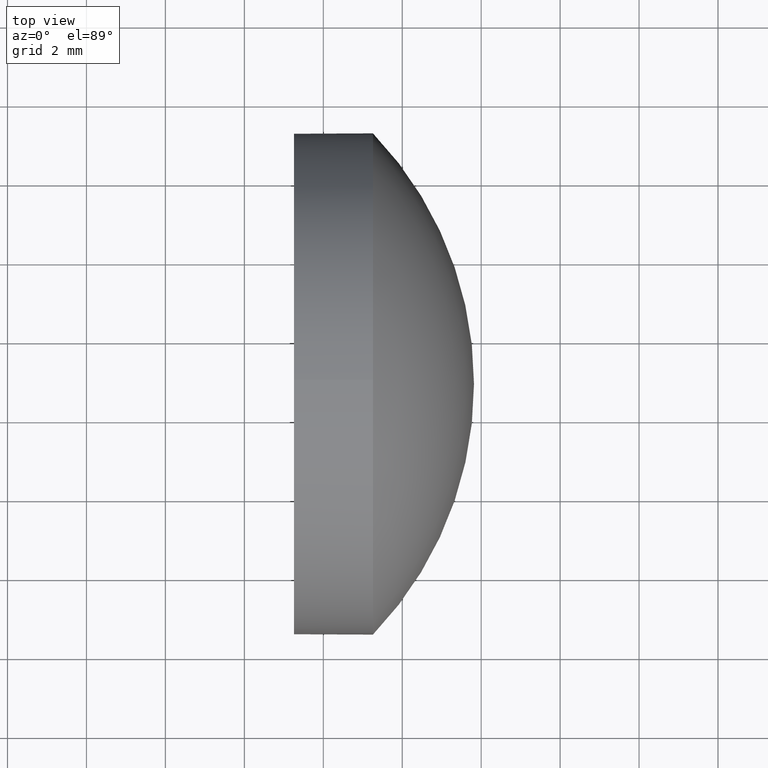
[diagram: clean part render]
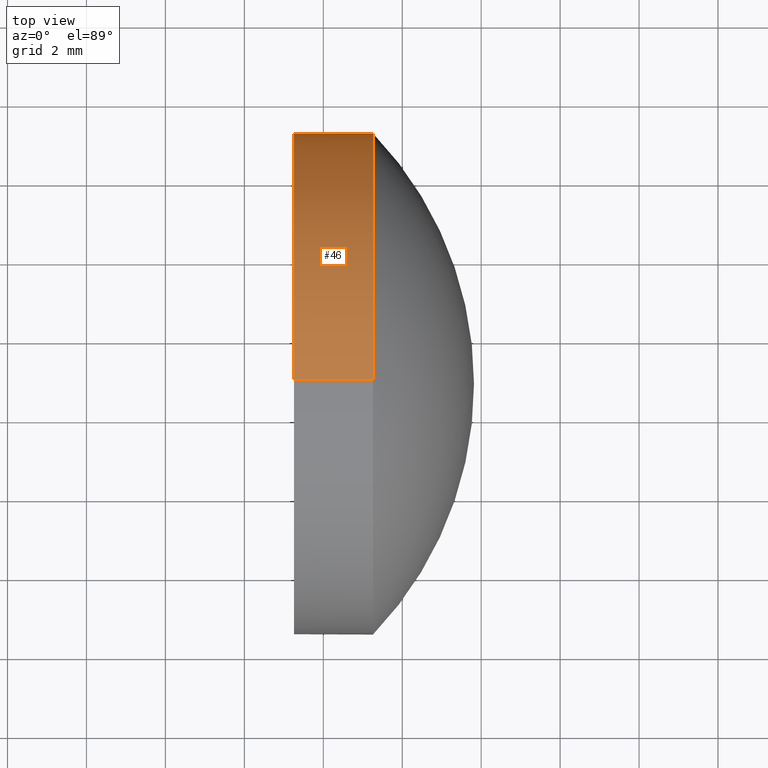
[diagram: same view with one face highlighted and labeled with its STEP entity id]
A machine part, top view. The second image highlights one B-rep face of the part: STEP entity #46.
In plain terms, the highlighted cylindrical surface (partial cylindrical patch) has radius 6.35 mm, axis along (-1, -0, -0).
Its self-contained STEP definition (entity closure, byte-faithful):
#4 = ORIENTED_EDGE ( 'NONE', *, *, #14, .T. ) ;
#6 = DIRECTION ( 'NONE',  ( 0.0000000000000000000, 0.0000000000000000000, 1.000000000000000000 ) ) ;
#12 = FACE_OUTER_BOUND ( 'NONE', #107, .T. ) ;
#14 = EDGE_CURVE ( 'NONE', #174, #149, #123, .T. ) ;
#15 = CARTESIAN_POINT ( 'NONE',  ( 399.2579511298699800, 149.2174605340740600, 7.776507174585692200E-016 ) ) ;
#16 = CARTESIAN_POINT ( 'NONE',  ( 394.9299226398758300, 142.8674605340740400, 0.0000000000000000000 ) ) ;
#18 = DIRECTION ( 'NONE',  ( -1.000000000000000000, -0.0000000000000000000, -0.0000000000000000000 ) ) ;
#20 = EDGE_CURVE ( 'NONE', #45, #103, #57, .T. ) ;
#21 = ORIENTED_EDGE ( 'NONE', *, *, #110, .T. ) ;
#24 = AXIS2_PLACEMENT_3D ( 'NONE', #53, #52, #93 ) ;
#25 = ORIENTED_EDGE ( 'NONE', *, *, #20, .F. ) ;
#34 = CARTESIAN_POINT ( 'NONE',  ( 399.2579511298699800, 142.8674605340740400, 6.350000000000022700 ) ) ;
#37 = VECTOR ( 'NONE', #156, 1000.000000000000000 ) ;
#41 = CYLINDRICAL_SURFACE ( 'NONE', #170, 6.350000000000022700 ) ;
#44 = AXIS2_PLACEMENT_3D ( 'NONE', #179, #95, #6 ) ;
#45 = VERTEX_POINT ( 'NONE', #34 ) ;
#46 = ADVANCED_FACE ( 'NONE', ( #12 ), #41, .T. ) ;
#48 = CARTESIAN_POINT ( 'NONE',  ( 397.2579511298699800, 142.8674605340740400, 6.350000000000022700 ) ) ;
#52 = DIRECTION ( 'NONE',  ( -1.000000000000000000, -0.0000000000000000000, -0.0000000000000000000 ) ) ;
#53 = CARTESIAN_POINT ( 'NONE',  ( 399.2579511298699800, 142.8674605340740400, 0.0000000000000000000 ) ) ;
#57 = LINE ( 'NONE', #96, #152 ) ;
#62 = CARTESIAN_POINT ( 'NONE',  ( 394.9299226398758300, 142.8674605340740400, -6.350000000000022700 ) ) ;
#89 = VERTEX_POINT ( 'NONE', #164 ) ;
#91 = ORIENTED_EDGE ( 'NONE', *, *, #150, .T. ) ;
#93 = DIRECTION ( 'NONE',  ( 0.0000000000000000000, 0.0000000000000000000, 1.000000000000000000 ) ) ;
#94 = DIRECTION ( 'NONE',  ( 0.0000000000000000000, 0.0000000000000000000, 1.000000000000000000 ) ) ;
#95 = DIRECTION ( 'NONE',  ( -1.000000000000000000, -0.0000000000000000000, -0.0000000000000000000 ) ) ;
#96 = CARTESIAN_POINT ( 'NONE',  ( 394.9299226398758300, 142.8674605340740400, 6.350000000000022700 ) ) ;
#102 = CIRCLE ( 'NONE', #44, 6.350000000000022700 ) ;
#103 = VERTEX_POINT ( 'NONE', #48 ) ;
#107 = EDGE_LOOP ( 'NONE', ( #4, #91, #135, #25, #21 ) ) ;
#110 = EDGE_CURVE ( 'NONE', #45, #174, #102, .T. ) ;
#111 = EDGE_CURVE ( 'NONE', #103, #89, #151, .T. ) ;
#115 = DIRECTION ( 'NONE',  ( -1.000000000000000000, -0.0000000000000000000, -0.0000000000000000000 ) ) ;
#123 = CIRCLE ( 'NONE', #24, 6.350000000000022700 ) ;
#125 = CARTESIAN_POINT ( 'NONE',  ( 399.2579511298699800, 142.8674605340740400, -6.350000000000022700 ) ) ;
#135 = ORIENTED_EDGE ( 'NONE', *, *, #111, .F. ) ;
#149 = VERTEX_POINT ( 'NONE', #125 ) ;
#150 = EDGE_CURVE ( 'NONE', #149, #89, #177, .T. ) ;
#151 = CIRCLE ( 'NONE', #160, 6.350000000000022700 ) ;
#152 = VECTOR ( 'NONE', #18, 1000.000000000000000 ) ;
#156 = DIRECTION ( 'NONE',  ( -1.000000000000000000, -0.0000000000000000000, -0.0000000000000000000 ) ) ;
#160 = AXIS2_PLACEMENT_3D ( 'NONE', #166, #115, #181 ) ;
#164 = CARTESIAN_POINT ( 'NONE',  ( 397.2579511298699800, 142.8674605340740400, -6.350000000000022700 ) ) ;
#166 = CARTESIAN_POINT ( 'NONE',  ( 397.2579511298699800, 142.8674605340740400, 0.0000000000000000000 ) ) ;
#170 = AXIS2_PLACEMENT_3D ( 'NONE', #16, #180, #94 ) ;
#174 = VERTEX_POINT ( 'NONE', #15 ) ;
#177 = LINE ( 'NONE', #62, #37 ) ;
#179 = CARTESIAN_POINT ( 'NONE',  ( 399.2579511298699800, 142.8674605340740400, 0.0000000000000000000 ) ) ;
#180 = DIRECTION ( 'NONE',  ( -1.000000000000000000, -0.0000000000000000000, -0.0000000000000000000 ) ) ;
#181 = DIRECTION ( 'NONE',  ( 0.0000000000000000000, 0.0000000000000000000, 1.000000000000000000 ) ) ;